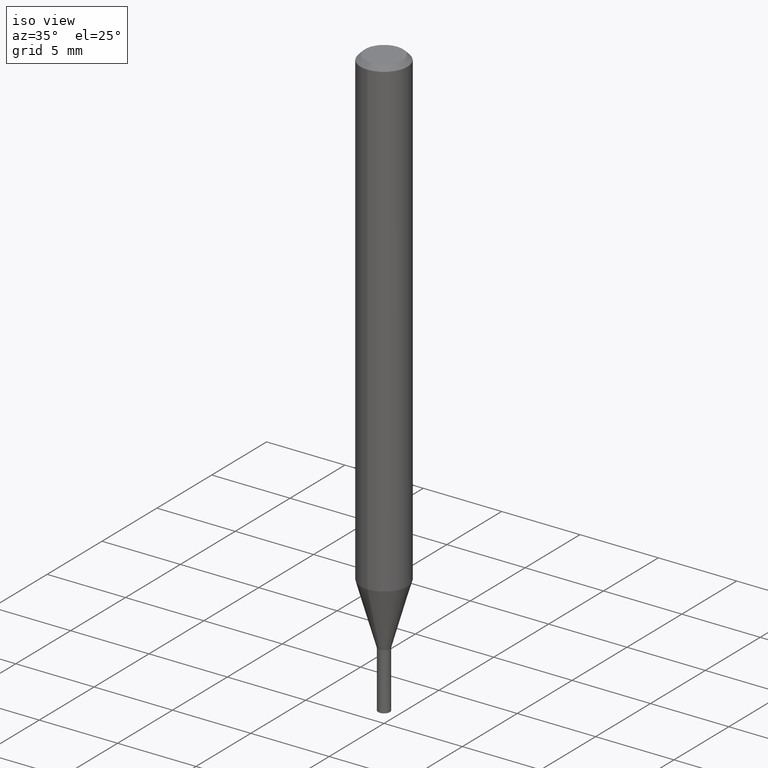
[diagram: clean part render]
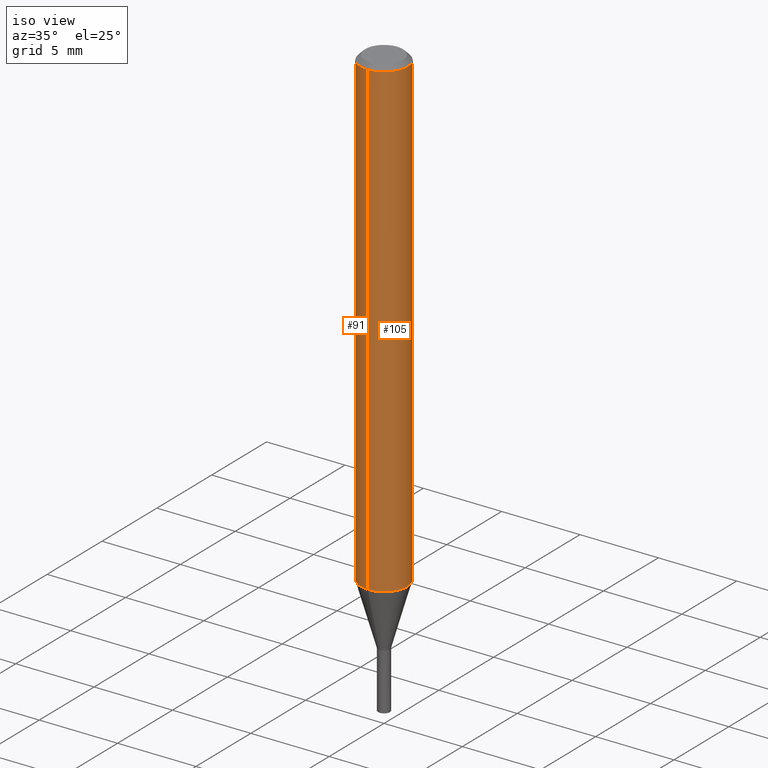
[diagram: same view with one multi-face feature highlighted, each face labeled with its STEP entity id]
A machine part, iso view. The highlighted faces form ONE feature: a constant-radius fillet chain: 2 tangent blend faces with common blend radius 1.5 mm. The faces share edges in the B-rep.
Their STEP definitions:
[1] entity #105 (Cylinder):
#99=EDGE_CURVE('',#103,#169,#236,.T.);
#103=VERTEX_POINT('',#241);
#105=ADVANCED_FACE('',(#243),#244,.T.);
#141=VERTEX_POINT('',#284);
#161=EDGE_CURVE('',#203,#141,#307,.T.);
#169=VERTEX_POINT('',#315);
#177=EDGE_CURVE('',#203,#103,#323,.T.);
#187=EDGE_CURVE('',#169,#141,#335,.T.);
#203=VERTEX_POINT('',#353);
#236=CIRCLE('',#379,1.5);
#241=CARTESIAN_POINT('',(0.0,1.5,-30.277));
#243=FACE_OUTER_BOUND('',#386,.T.);
#244=CYLINDRICAL_SURFACE('',#387,1.5);
#284=CARTESIAN_POINT('',(1.83690953073357E-016,-1.5,-0.300000000000001));
#307=CIRCLE('',#468,1.5);
#315=CARTESIAN_POINT('',(1.83690953073357E-016,-1.5,-30.277));
#323=LINE('',#492,#493);
#335=LINE('',#507,#508);
#353=CARTESIAN_POINT('',(0.0,1.5,-0.300000000000001));
#379=AXIS2_PLACEMENT_3D('',#554,#555,#556);
#386=EDGE_LOOP('',(#566,#567,#568,#569));
#387=AXIS2_PLACEMENT_3D('',#570,#571,#572);
#468=AXIS2_PLACEMENT_3D('',#649,#650,#651);
#492=CARTESIAN_POINT('',(-1.83690953073357E-016,1.5,-15.2885));
#493=VECTOR('',#663,1.0);
#507=CARTESIAN_POINT('',(1.83690953073357E-016,-1.5,-15.2885));
#508=VECTOR('',#683,1.0);
#554=CARTESIAN_POINT('',(0.0,0.0,-30.277));
#555=DIRECTION('',(0.0,0.0,-1.0));
#556=DIRECTION('',(0.0,1.0,0.0));
#566=ORIENTED_EDGE('',*,*,#177,.F.);
#567=ORIENTED_EDGE('',*,*,#161,.T.);
#568=ORIENTED_EDGE('',*,*,#187,.F.);
#569=ORIENTED_EDGE('',*,*,#99,.F.);
#570=CARTESIAN_POINT('',(0.0,0.0,-15.2885));
#571=DIRECTION('',(-0.0,-0.0,1.0));
#572=DIRECTION('',(0.0,1.0,0.0));
#649=CARTESIAN_POINT('',(0.0,0.0,-0.300000000000001));
#650=DIRECTION('',(0.0,0.0,-1.0));
#651=DIRECTION('',(0.0,1.0,0.0));
#663=DIRECTION('',(0.0,0.0,-1.0));
#683=DIRECTION('',(-0.0,-0.0,1.0));
[2] entity #91 (Cylinder):
#91=ADVANCED_FACE('',(#226),#227,.T.);
#103=VERTEX_POINT('',#241);
#141=VERTEX_POINT('',#284);
#143=EDGE_CURVE('',#169,#103,#286,.T.);
#169=VERTEX_POINT('',#315);
#177=EDGE_CURVE('',#203,#103,#323,.T.);
#187=EDGE_CURVE('',#169,#141,#335,.T.);
#193=EDGE_CURVE('',#141,#203,#341,.T.);
#203=VERTEX_POINT('',#353);
#226=FACE_OUTER_BOUND('',#368,.T.);
#227=CYLINDRICAL_SURFACE('',#369,1.5);
#241=CARTESIAN_POINT('',(0.0,1.5,-30.277));
#284=CARTESIAN_POINT('',(1.83690953073357E-016,-1.5,-0.300000000000001));
#286=CIRCLE('',#442,1.5);
#315=CARTESIAN_POINT('',(1.83690953073357E-016,-1.5,-30.277));
#323=LINE('',#492,#493);
#335=LINE('',#507,#508);
#341=CIRCLE('',#517,1.5);
#353=CARTESIAN_POINT('',(0.0,1.5,-0.300000000000001));
#368=EDGE_LOOP('',(#536,#537,#538,#539));
#369=AXIS2_PLACEMENT_3D('',#540,#541,#542);
#442=AXIS2_PLACEMENT_3D('',#619,#620,#621);
#492=CARTESIAN_POINT('',(-1.83690953073357E-016,1.5,-15.2885));
#493=VECTOR('',#663,1.0);
#507=CARTESIAN_POINT('',(1.83690953073357E-016,-1.5,-15.2885));
#508=VECTOR('',#683,1.0);
#517=AXIS2_PLACEMENT_3D('',#685,#686,#687);
#536=ORIENTED_EDGE('',*,*,#177,.T.);
#537=ORIENTED_EDGE('',*,*,#143,.F.);
#538=ORIENTED_EDGE('',*,*,#187,.T.);
#539=ORIENTED_EDGE('',*,*,#193,.T.);
#540=CARTESIAN_POINT('',(0.0,0.0,-15.2885));
#541=DIRECTION('',(-0.0,-0.0,1.0));
#542=DIRECTION('',(0.0,1.0,0.0));
#619=CARTESIAN_POINT('',(0.0,0.0,-30.277));
#620=DIRECTION('',(0.0,0.0,-1.0));
#621=DIRECTION('',(0.0,1.0,0.0));
#663=DIRECTION('',(0.0,0.0,-1.0));
#683=DIRECTION('',(-0.0,-0.0,1.0));
#685=CARTESIAN_POINT('',(0.0,0.0,-0.300000000000001));
#686=DIRECTION('',(0.0,0.0,-1.0));
#687=DIRECTION('',(0.0,1.0,0.0));